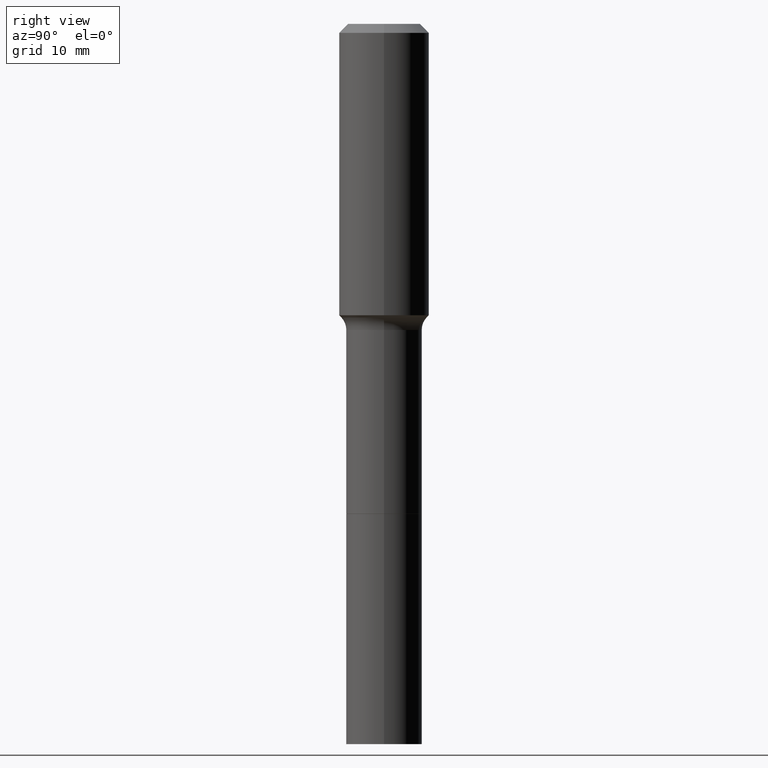
[diagram: clean part render]
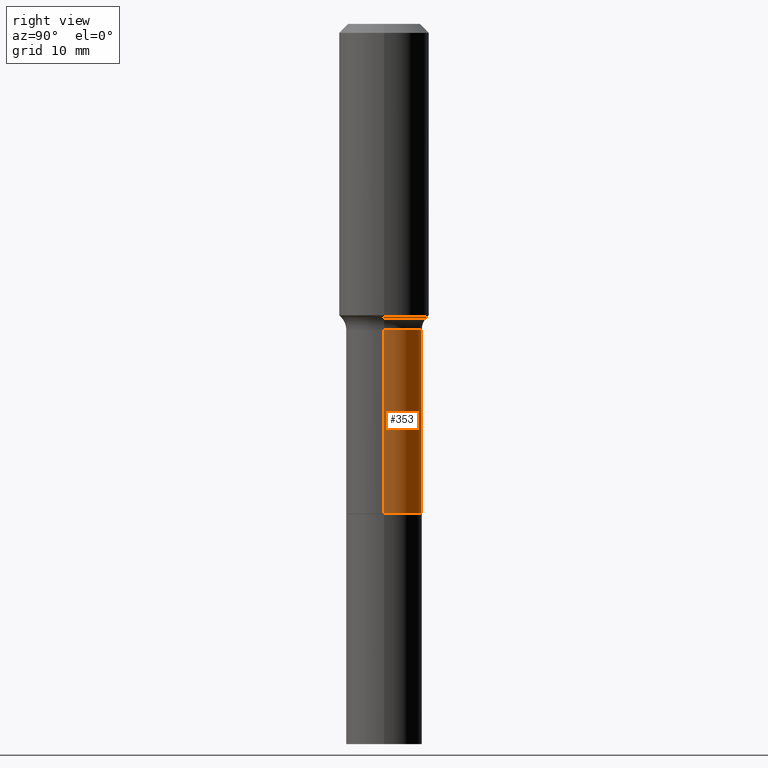
[diagram: same view with one face highlighted and labeled with its STEP entity id]
A machine part, right view. The second image highlights one B-rep face of the part: STEP entity #353.
In plain terms, the highlighted cylindrical surface (partial cylindrical patch) has radius 4.2164 mm, axis along (-0, 0, 1).
Its self-contained STEP definition (entity closure, byte-faithful):
#13 = ORIENTED_EDGE ( 'NONE', *, *, #60, .T. ) ;
#31 = DIRECTION ( 'NONE',  ( -2.445468806185136597E-29, 3.491481338843145583E-15, 1.000000000000000000 ) ) ;
#37 = CIRCLE ( 'NONE', #162, 0.1659999999999999254 ) ;
#58 = CARTESIAN_POINT ( 'NONE',  ( -0.1659999999999999809, -4.895152866024481976E-15, -2.141100000000000225 ) ) ;
#60 = EDGE_CURVE ( 'NONE', #194, #411, #473, .T. ) ;
#89 = DIRECTION ( 'NONE',  ( -2.445468806185136877E-29, 3.491481338843145188E-15, 1.000000000000000000 ) ) ;
#93 = CARTESIAN_POINT ( 'NONE',  ( 0.1659999999999999531, -1.159171804495919785E-15, 8.094453447821250782E-30 ) ) ;
#127 = LINE ( 'NONE', #175, #437 ) ;
#162 = AXIS2_PLACEMENT_3D ( 'NONE', #510, #31, #187 ) ;
#167 = EDGE_CURVE ( 'NONE', #194, #404, #372, .T. ) ;
#175 = CARTESIAN_POINT ( 'NONE',  ( -0.1659999999999999531, 1.179500941361765976E-15, -8.165432249823140313E-30 ) ) ;
#187 = DIRECTION ( 'NONE',  ( 1.000000000000000000, -6.982962677686265922E-15, 0.000000000000000000 ) ) ;
#194 = VERTEX_POINT ( 'NONE', #273 ) ;
#215 = DIRECTION ( 'NONE',  ( -2.445468806185136877E-29, 3.491481338843145188E-15, 1.000000000000000000 ) ) ;
#242 = AXIS2_PLACEMENT_3D ( 'NONE', #491, #289, #329 ) ;
#250 = CARTESIAN_POINT ( 'NONE',  ( 0.1659999999999999254, -5.832868724671354916E-15, -1.338600000000000234 ) ) ;
#257 = EDGE_CURVE ( 'NONE', #404, #515, #37, .T. ) ;
#268 = CARTESIAN_POINT ( 'NONE',  ( -0.1659999999999999254, -4.895152866024481976E-15, -1.338600000000000234 ) ) ;
#273 = CARTESIAN_POINT ( 'NONE',  ( 0.1659999999999999809, -8.634782499092979373E-15, -2.141100000000000225 ) ) ;
#274 = ORIENTED_EDGE ( 'NONE', *, *, #257, .F. ) ;
#289 = DIRECTION ( 'NONE',  ( -2.445468806185136597E-29, 3.491481338843145583E-15, 1.000000000000000000 ) ) ;
#291 = DIRECTION ( 'NONE',  ( -2.445468806185136597E-29, 3.491481338843145583E-15, 1.000000000000000000 ) ) ;
#319 = VECTOR ( 'NONE', #215, 39.37007874015748143 ) ;
#323 = CYLINDRICAL_SURFACE ( 'NONE', #508, 0.1659999999999999531 ) ;
#329 = DIRECTION ( 'NONE',  ( 1.000000000000000000, -6.982962677686263555E-15, 0.000000000000000000 ) ) ;
#353 = ADVANCED_FACE ( 'NONE', ( #493 ), #323, .T. ) ;
#363 = ORIENTED_EDGE ( 'NONE', *, *, #167, .F. ) ;
#365 = CARTESIAN_POINT ( 'NONE',  ( 0.000000000000000000, 0.000000000000000000, 0.000000000000000000 ) ) ;
#372 = LINE ( 'NONE', #93, #319 ) ;
#404 = VERTEX_POINT ( 'NONE', #250 ) ;
#407 = EDGE_LOOP ( 'NONE', ( #13, #475, #274, #363 ) ) ;
#409 = EDGE_CURVE ( 'NONE', #411, #515, #127, .T. ) ;
#411 = VERTEX_POINT ( 'NONE', #58 ) ;
#437 = VECTOR ( 'NONE', #89, 39.37007874015748143 ) ;
#449 = DIRECTION ( 'NONE',  ( 1.000000000000000000, -6.982962677686265922E-15, 4.876176775795935793E-29 ) ) ;
#473 = CIRCLE ( 'NONE', #242, 0.1659999999999999809 ) ;
#475 = ORIENTED_EDGE ( 'NONE', *, *, #409, .T. ) ;
#491 = CARTESIAN_POINT ( 'NONE',  ( 5.235993260922996974E-29, -7.475610694597059983E-15, -2.141100000000000225 ) ) ;
#493 = FACE_OUTER_BOUND ( 'NONE', #407, .T. ) ;
#508 = AXIS2_PLACEMENT_3D ( 'NONE', #365, #291, #449 ) ;
#510 = CARTESIAN_POINT ( 'NONE',  ( 3.273504543959424474E-29, -4.673696920175435525E-15, -1.338600000000000234 ) ) ;
#515 = VERTEX_POINT ( 'NONE', #268 ) ;